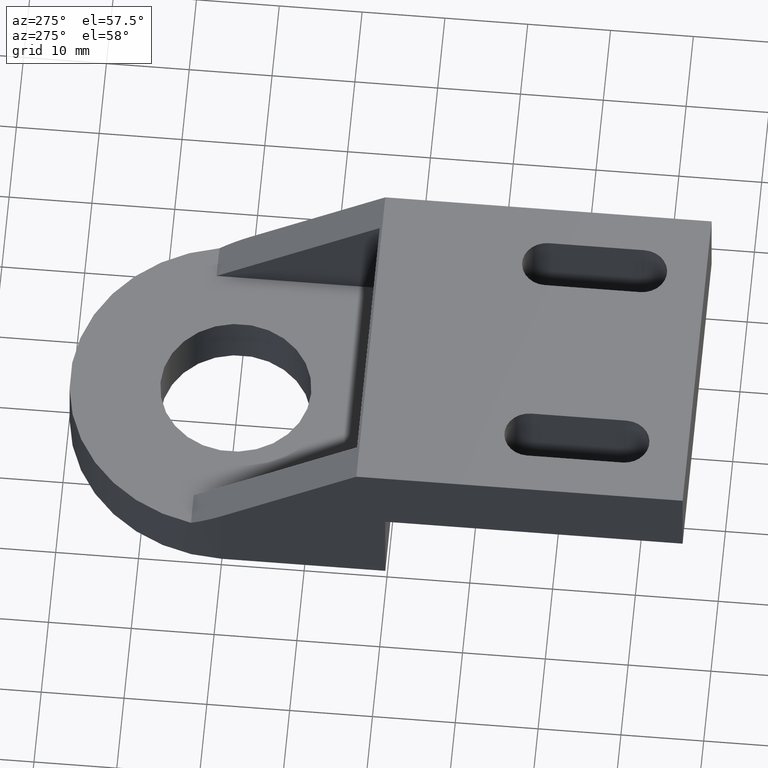
[diagram: clean part render]
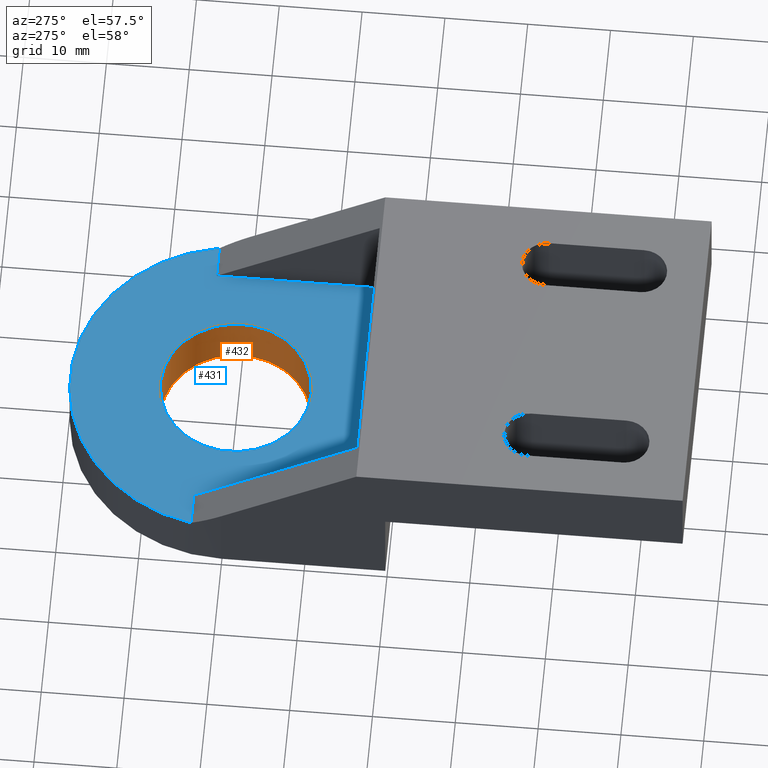
[diagram: same view with the hole feature highlighted: cylindrical wall and planar end face, labeled with their STEP entity ids]
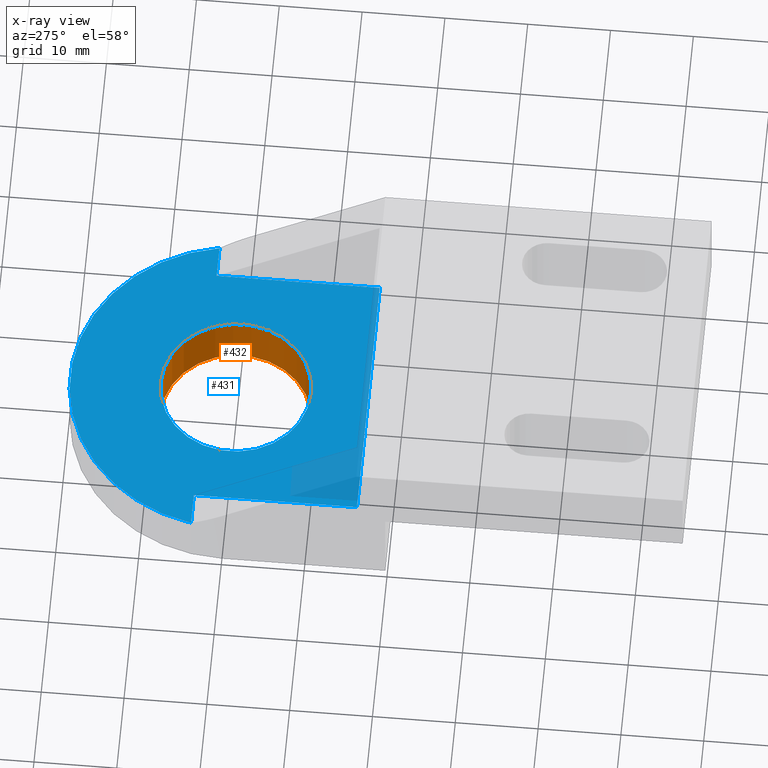
[diagram: x-ray of the same camera — body ghosted, the hole faces saturated]
A machine part, auxiliary view. The highlighted faces form one hole feature of diameter 18.2 mm: the cylindrical wall (entity #432, orange) and its adjacent planar end face (entity #431, blue) — they share a circular edge in the B-rep.
The next image is the same camera in x-ray (body ghosted, the hole faces saturated) — the bore reads through the body.
Wall:
#29=CIRCLE('',#475,9.09999999996353);
#34=CIRCLE('',#487,9.09999999996353);
#36=CYLINDRICAL_SURFACE('',#488,9.09999999996353);
#54=FACE_OUTER_BOUND('',#82,.T.);
#82=EDGE_LOOP('',(#367,#368,#369,#370));
#128=LINE('',#723,#174);
#174=VECTOR('',#592,9.09999999996353);
#207=VERTEX_POINT('',#678);
#222=VERTEX_POINT('',#720);
#253=EDGE_CURVE('',#207,#207,#29,.T.);
#273=EDGE_CURVE('',#222,#222,#34,.T.);
#274=EDGE_CURVE('',#207,#222,#128,.T.);
#367=ORIENTED_EDGE('',*,*,#253,.T.);
#368=ORIENTED_EDGE('',*,*,#274,.T.);
#369=ORIENTED_EDGE('',*,*,#273,.T.);
#370=ORIENTED_EDGE('',*,*,#274,.F.);
#432=ADVANCED_FACE('',(#54),#36,.F.);
#475=AXIS2_PLACEMENT_3D('',#679,#549,#550);
#487=AXIS2_PLACEMENT_3D('',#721,#588,#589);
#488=AXIS2_PLACEMENT_3D('',#722,#590,#591);
#549=DIRECTION('center_axis',(0.,0.,-1.));
#550=DIRECTION('ref_axis',(0.,-1.,0.));
#588=DIRECTION('center_axis',(0.,0.,1.));
#589=DIRECTION('ref_axis',(0.,-1.,0.));
#590=DIRECTION('center_axis',(0.,0.,1.));
#591=DIRECTION('ref_axis',(0.,-1.,0.));
#592=DIRECTION('',(0.,0.,1.));
#678=CARTESIAN_POINT('',(0.,9.09999999996353,-5.715616E-16));
#679=CARTESIAN_POINT('Origin',(0.,0.,0.));
#720=CARTESIAN_POINT('',(0.,9.09999999996353,6.99999999997154));
#721=CARTESIAN_POINT('Origin',(0.,0.,6.99999999997154));
#722=CARTESIAN_POINT('Origin',(0.,0.,6.99999999997154));
#723=CARTESIAN_POINT('',(-1.11442858721962E-15,9.09999999996353,6.99999999997154));
End face:
#20=FACE_BOUND('',#81,.T.);
#24=CIRCLE('',#466,19.99999999992);
#34=CIRCLE('',#487,9.09999999996353);
#53=FACE_OUTER_BOUND('',#80,.T.);
#80=EDGE_LOOP('',(#360,#361,#362,#363,#364,#365));
#81=EDGE_LOOP('',(#366));
#118=LINE('',#701,#164);
#122=LINE('',#708,#168);
#124=LINE('',#712,#170);
#126=LINE('',#716,#172);
#127=LINE('',#718,#173);
#164=VECTOR('',#570,3.95477041329559);
#168=VECTOR('',#574,3.9547704132965);
#170=VECTOR('',#578,19.6999999999212);
#172=VECTOR('',#582,31.399999999875);
#173=VECTOR('',#585,19.6999999999212);
#194=VERTEX_POINT('',#644);
#195=VERTEX_POINT('',#646);
#216=VERTEX_POINT('',#700);
#219=VERTEX_POINT('',#706);
#220=VERTEX_POINT('',#710);
#221=VERTEX_POINT('',#714);
#222=VERTEX_POINT('',#720);
#236=EDGE_CURVE('',#195,#194,#24,.T.);
#263=EDGE_CURVE('',#216,#195,#118,.T.);
#267=EDGE_CURVE('',#194,#219,#122,.T.);
#269=EDGE_CURVE('',#219,#220,#124,.T.);
#271=EDGE_CURVE('',#220,#221,#126,.T.);
#272=EDGE_CURVE('',#221,#216,#127,.T.);
#273=EDGE_CURVE('',#222,#222,#34,.T.);
#360=ORIENTED_EDGE('',*,*,#267,.T.);
#361=ORIENTED_EDGE('',*,*,#269,.T.);
#362=ORIENTED_EDGE('',*,*,#271,.T.);
#363=ORIENTED_EDGE('',*,*,#272,.T.);
#364=ORIENTED_EDGE('',*,*,#263,.T.);
#365=ORIENTED_EDGE('',*,*,#236,.T.);
#366=ORIENTED_EDGE('',*,*,#273,.F.);
#414=PLANE('',#486);
#431=ADVANCED_FACE('',(#53,#20),#414,.T.);
#466=AXIS2_PLACEMENT_3D('',#647,#520,#521);
#486=AXIS2_PLACEMENT_3D('',#719,#586,#587);
#487=AXIS2_PLACEMENT_3D('',#721,#588,#589);
#520=DIRECTION('center_axis',(0.,0.,1.));
#521=DIRECTION('ref_axis',(1.,0.,0.));
#570=DIRECTION('',(1.,0.,0.));
#574=DIRECTION('',(1.,0.,0.));
#578=DIRECTION('',(0.,-1.,0.));
#582=DIRECTION('',(1.,0.,0.));
#585=DIRECTION('',(0.,1.,0.));
#586=DIRECTION('center_axis',(0.,0.,1.));
#587=DIRECTION('ref_axis',(1.,0.,0.));
#588=DIRECTION('center_axis',(0.,0.,1.));
#589=DIRECTION('ref_axis',(0.,-1.,0.));
#644=CARTESIAN_POINT('',(-19.6547704132336,3.69999999998481,6.99999999997154));
#646=CARTESIAN_POINT('',(19.6547704132336,3.69999999998481,6.99999999997154));
#647=CARTESIAN_POINT('Origin',(0.,0.,6.99999999997154));
#700=CARTESIAN_POINT('',(15.699999999938,3.69999999998481,6.99999999997154));
#701=CARTESIAN_POINT('',(15.699999999938,3.69999999998481,6.99999999997154));
#706=CARTESIAN_POINT('',(-15.6999999999371,3.69999999998481,6.99999999997154));
#708=CARTESIAN_POINT('',(-19.6547704132336,3.69999999998481,6.99999999997154));
#710=CARTESIAN_POINT('',(-15.6999999999371,-15.9999999999363,6.99999999997154));
#712=CARTESIAN_POINT('',(-15.6999999999371,3.69999999998481,6.99999999997154));
#714=CARTESIAN_POINT('',(15.699999999938,-15.9999999999363,6.99999999997154));
#716=CARTESIAN_POINT('',(-15.6999999999371,-15.9999999999363,6.99999999997154));
#718=CARTESIAN_POINT('',(15.699999999938,-15.9999999999363,6.99999999997154));
#719=CARTESIAN_POINT('Origin',(-19.6553408810141,20.0005704677005,6.99999999997153));
#720=CARTESIAN_POINT('',(0.,9.09999999996353,6.99999999997154));
#721=CARTESIAN_POINT('Origin',(0.,0.,6.99999999997154));